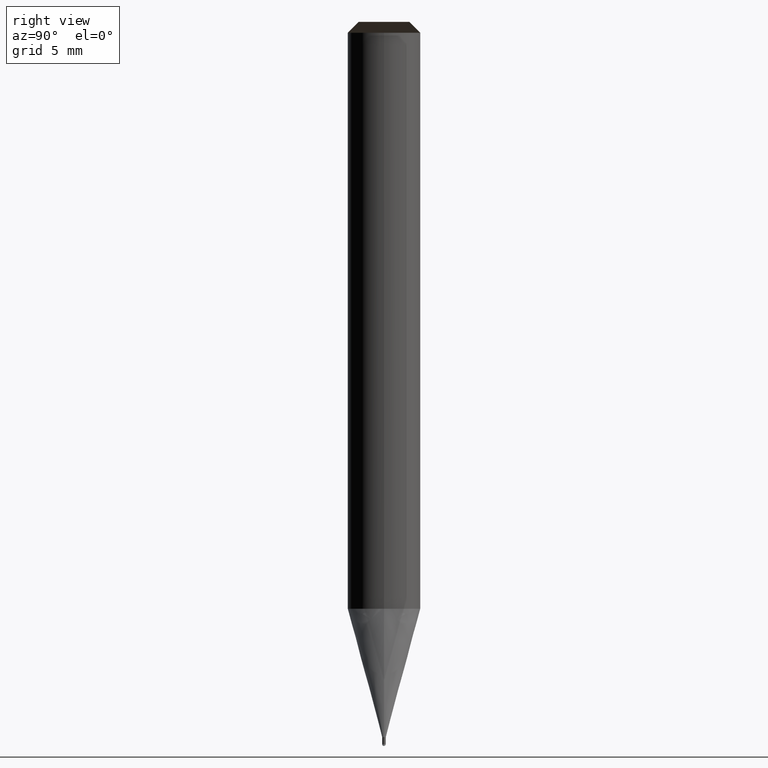
[diagram: clean part render]
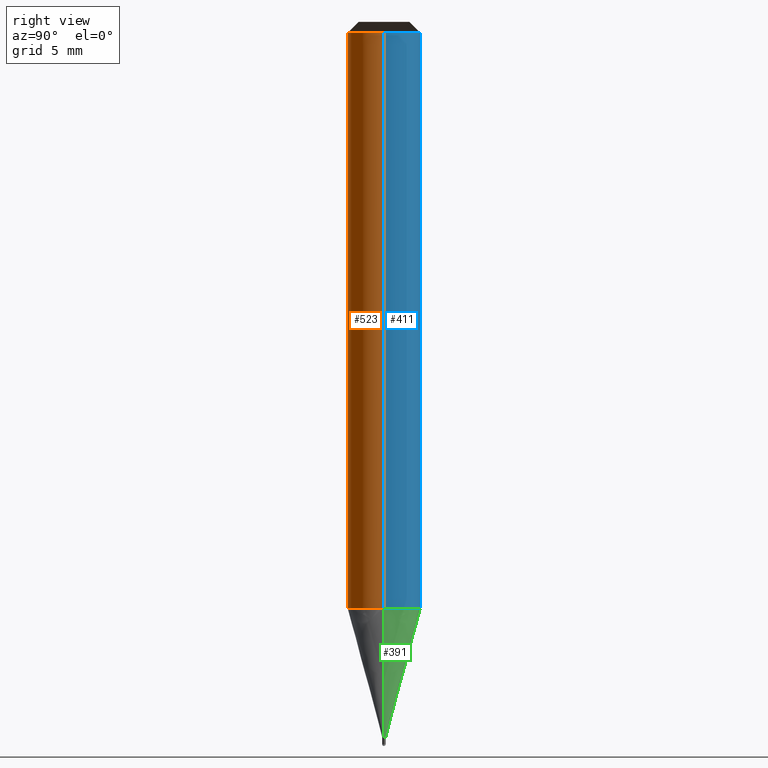
[diagram: same view with three faces highlighted in distinct colors, each labeled with its STEP entity id]
A machine part, right view with three faces highlighted in distinct colors.
Their STEP definitions:

[orange] entity #523 — the highlighted face is a freeform B-spline surface patch.
#195=CARTESIAN_POINT('',(2.0,0.0,-0.0));
#199=CARTESIAN_POINT('',(-2.0,0.0,-0.0));
#200=CARTESIAN_POINT('',(2.0,0.0,31.81));
#204=CARTESIAN_POINT('',(-2.0,0.0,31.81));
#214=CARTESIAN_POINT('',(-2.0,-2.0,-0.0));
#215=CARTESIAN_POINT('',(0.0,-2.0,-0.0));
#216=CARTESIAN_POINT('',(2.0,-2.0,-0.0));
#217=CARTESIAN_POINT('',(-2.0,-2.0,31.81));
#218=CARTESIAN_POINT('',(0.0,-2.0,31.81));
#219=CARTESIAN_POINT('',(2.0,-2.0,31.81));
#504=(
BOUNDED_SURFACE()
B_SPLINE_SURFACE(1,2,(
(#199,#214,#215,#216,#195),
(#204,#217,#218,#219,#200)
), .UNSPECIFIED.,.F.,.F.,.F.)
B_SPLINE_SURFACE_WITH_KNOTS((2,2),(3,2,3),(
0.0,1.0),(
0.0,0.5,1.0), .UNSPECIFIED.)
GEOMETRIC_REPRESENTATION_ITEM()
RATIONAL_B_SPLINE_SURFACE(((1.0,0.707106781187,1.0,0.707106781187,1.0),
(1.0,0.707106781187,1.0,0.707106781187,1.0)
))
REPRESENTATION_ITEM('')
SURFACE()
);
#505=(
BOUNDED_CURVE()
B_SPLINE_CURVE(1,(#204,#199),.UNSPECIFIED.,.F.,.F.)
B_SPLINE_CURVE_WITH_KNOTS((2,2),
(0.0,1.0),.UNSPECIFIED.)
CURVE()
GEOMETRIC_REPRESENTATION_ITEM()
RATIONAL_B_SPLINE_CURVE((1.0,1.0))
REPRESENTATION_ITEM('')
);
#506=(
BOUNDED_CURVE()
B_SPLINE_CURVE(2,(#199,#214,#215,#216,#195),.UNSPECIFIED.,.F.,.F.)
B_SPLINE_CURVE_WITH_KNOTS((3,2,3),
(0.0,0.5,1.0),.UNSPECIFIED.)
CURVE()
GEOMETRIC_REPRESENTATION_ITEM()
RATIONAL_B_SPLINE_CURVE((1.0,0.707106781187,1.0,0.707106781187,1.0))
REPRESENTATION_ITEM('')
);
#507=(
BOUNDED_CURVE()
B_SPLINE_CURVE(1,(#195,#200),.UNSPECIFIED.,.F.,.F.)
B_SPLINE_CURVE_WITH_KNOTS((2,2),
(0.0,1.0),.UNSPECIFIED.)
CURVE()
GEOMETRIC_REPRESENTATION_ITEM()
RATIONAL_B_SPLINE_CURVE((1.0,1.0))
REPRESENTATION_ITEM('')
);
#508=(
BOUNDED_CURVE()
B_SPLINE_CURVE(2,(#200,#219,#218,#217,#204),.UNSPECIFIED.,.F.,.F.)
B_SPLINE_CURVE_WITH_KNOTS((3,2,3),
(0.0,0.5,1.0),.UNSPECIFIED.)
CURVE()
GEOMETRIC_REPRESENTATION_ITEM()
RATIONAL_B_SPLINE_CURVE((1.0,0.707106781187,1.0,0.707106781187,1.0))
REPRESENTATION_ITEM('')
);
#509=VERTEX_POINT('',#195);
#510=VERTEX_POINT('',#199);
#511=VERTEX_POINT('',#200);
#512=VERTEX_POINT('',#204);
#513=EDGE_CURVE('',#512,#510,#505,.T.);
#514=EDGE_CURVE('',#510,#509,#506,.T.);
#515=EDGE_CURVE('',#509,#511,#507,.T.);
#516=EDGE_CURVE('',#511,#512,#508,.T.);
#517=ORIENTED_EDGE('',*,*,#513,.T.);
#518=ORIENTED_EDGE('',*,*,#514,.T.);
#519=ORIENTED_EDGE('',*,*,#515,.T.);
#520=ORIENTED_EDGE('',*,*,#516,.T.);
#521=EDGE_LOOP('',(#517,#518,#519,#520));
#522=FACE_OUTER_BOUND('',#521,.T.);
#523=ADVANCED_FACE('',(#522),#504,.T.);

[blue] entity #411 — the highlighted face is a freeform B-spline surface patch.
#195=CARTESIAN_POINT('',(2.0,0.0,-0.0));
#196=CARTESIAN_POINT('',(2.0,2.0,-0.0));
#197=CARTESIAN_POINT('',(0.0,2.0,-0.0));
#198=CARTESIAN_POINT('',(-2.0,2.0,-0.0));
#199=CARTESIAN_POINT('',(-2.0,0.0,-0.0));
#200=CARTESIAN_POINT('',(2.0,0.0,31.81));
#201=CARTESIAN_POINT('',(2.0,2.0,31.81));
#202=CARTESIAN_POINT('',(0.0,2.0,31.81));
#203=CARTESIAN_POINT('',(-2.0,2.0,31.81));
#204=CARTESIAN_POINT('',(-2.0,0.0,31.81));
#392=(
BOUNDED_SURFACE()
B_SPLINE_SURFACE(1,2,(
(#195,#196,#197,#198,#199),
(#200,#201,#202,#203,#204)
), .UNSPECIFIED.,.F.,.F.,.F.)
B_SPLINE_SURFACE_WITH_KNOTS((2,2),(3,2,3),(
0.0,1.0),(
0.0,0.5,1.0), .UNSPECIFIED.)
GEOMETRIC_REPRESENTATION_ITEM()
RATIONAL_B_SPLINE_SURFACE(((1.0,0.707106781187,1.0,0.707106781187,1.0),
(1.0,0.707106781187,1.0,0.707106781187,1.0)
))
REPRESENTATION_ITEM('')
SURFACE()
);
#393=(
BOUNDED_CURVE()
B_SPLINE_CURVE(2,(#200,#201,#202,#203,#204),.UNSPECIFIED.,.F.,.F.)
B_SPLINE_CURVE_WITH_KNOTS((3,2,3),
(0.0,0.5,1.0),.UNSPECIFIED.)
CURVE()
GEOMETRIC_REPRESENTATION_ITEM()
RATIONAL_B_SPLINE_CURVE((1.0,0.707106781187,1.0,0.707106781187,1.0))
REPRESENTATION_ITEM('')
);
#394=(
BOUNDED_CURVE()
B_SPLINE_CURVE(1,(#204,#199),.UNSPECIFIED.,.F.,.F.)
B_SPLINE_CURVE_WITH_KNOTS((2,2),
(0.0,1.0),.UNSPECIFIED.)
CURVE()
GEOMETRIC_REPRESENTATION_ITEM()
RATIONAL_B_SPLINE_CURVE((1.0,1.0))
REPRESENTATION_ITEM('')
);
#395=(
BOUNDED_CURVE()
B_SPLINE_CURVE(2,(#199,#198,#197,#196,#195),.UNSPECIFIED.,.F.,.F.)
B_SPLINE_CURVE_WITH_KNOTS((3,2,3),
(0.0,0.5,1.0),.UNSPECIFIED.)
CURVE()
GEOMETRIC_REPRESENTATION_ITEM()
RATIONAL_B_SPLINE_CURVE((1.0,0.707106781187,1.0,0.707106781187,1.0))
REPRESENTATION_ITEM('')
);
#396=(
BOUNDED_CURVE()
B_SPLINE_CURVE(1,(#195,#200),.UNSPECIFIED.,.F.,.F.)
B_SPLINE_CURVE_WITH_KNOTS((2,2),
(0.0,1.0),.UNSPECIFIED.)
CURVE()
GEOMETRIC_REPRESENTATION_ITEM()
RATIONAL_B_SPLINE_CURVE((1.0,1.0))
REPRESENTATION_ITEM('')
);
#397=VERTEX_POINT('',#195);
#398=VERTEX_POINT('',#199);
#399=VERTEX_POINT('',#200);
#400=VERTEX_POINT('',#204);
#401=EDGE_CURVE('',#399,#400,#393,.T.);
#402=EDGE_CURVE('',#400,#398,#394,.T.);
#403=EDGE_CURVE('',#398,#397,#395,.T.);
#404=EDGE_CURVE('',#397,#399,#396,.T.);
#405=ORIENTED_EDGE('',*,*,#401,.T.);
#406=ORIENTED_EDGE('',*,*,#402,.T.);
#407=ORIENTED_EDGE('',*,*,#403,.T.);
#408=ORIENTED_EDGE('',*,*,#404,.T.);
#409=EDGE_LOOP('',(#405,#406,#407,#408));
#410=FACE_OUTER_BOUND('',#409,.T.);
#411=ADVANCED_FACE('',(#410),#392,.T.);

[green] entity #391 — the highlighted face is a freeform B-spline surface patch.
#190=CARTESIAN_POINT('',(0.1,0.0,-7.090896534381));
#191=CARTESIAN_POINT('',(0.1,0.1,-7.090896534381));
#192=CARTESIAN_POINT('',(0.0,0.1,-7.090896534381));
#193=CARTESIAN_POINT('',(-0.1,0.1,-7.090896534381));
#194=CARTESIAN_POINT('',(-0.1,0.0,-7.090896534381));
#195=CARTESIAN_POINT('',(2.0,0.0,-0.0));
#196=CARTESIAN_POINT('',(2.0,2.0,-0.0));
#197=CARTESIAN_POINT('',(0.0,2.0,-0.0));
#198=CARTESIAN_POINT('',(-2.0,2.0,-0.0));
#199=CARTESIAN_POINT('',(-2.0,0.0,-0.0));
#372=(
BOUNDED_SURFACE()
B_SPLINE_SURFACE(1,2,(
(#190,#191,#192,#193,#194),
(#195,#196,#197,#198,#199)
), .UNSPECIFIED.,.F.,.F.,.F.)
B_SPLINE_SURFACE_WITH_KNOTS((2,2),(3,2,3),(
0.0,1.0),(
0.0,0.5,1.0), .UNSPECIFIED.)
GEOMETRIC_REPRESENTATION_ITEM()
RATIONAL_B_SPLINE_SURFACE(((1.0,0.707106781187,1.0,0.707106781187,1.0),
(1.0,0.707106781187,1.0,0.707106781187,1.0)
))
REPRESENTATION_ITEM('')
SURFACE()
);
#373=(
BOUNDED_CURVE()
B_SPLINE_CURVE(2,(#195,#196,#197,#198,#199),.UNSPECIFIED.,.F.,.F.)
B_SPLINE_CURVE_WITH_KNOTS((3,2,3),
(0.0,0.5,1.0),.UNSPECIFIED.)
CURVE()
GEOMETRIC_REPRESENTATION_ITEM()
RATIONAL_B_SPLINE_CURVE((1.0,0.707106781187,1.0,0.707106781187,1.0))
REPRESENTATION_ITEM('')
);
#374=(
BOUNDED_CURVE()
B_SPLINE_CURVE(1,(#199,#194),.UNSPECIFIED.,.F.,.F.)
B_SPLINE_CURVE_WITH_KNOTS((2,2),
(0.0,1.0),.UNSPECIFIED.)
CURVE()
GEOMETRIC_REPRESENTATION_ITEM()
RATIONAL_B_SPLINE_CURVE((1.0,1.0))
REPRESENTATION_ITEM('')
);
#375=(
BOUNDED_CURVE()
B_SPLINE_CURVE(2,(#194,#193,#192,#191,#190),.UNSPECIFIED.,.F.,.F.)
B_SPLINE_CURVE_WITH_KNOTS((3,2,3),
(0.0,0.5,1.0),.UNSPECIFIED.)
CURVE()
GEOMETRIC_REPRESENTATION_ITEM()
RATIONAL_B_SPLINE_CURVE((1.0,0.707106781187,1.0,0.707106781187,1.0))
REPRESENTATION_ITEM('')
);
#376=(
BOUNDED_CURVE()
B_SPLINE_CURVE(1,(#190,#195),.UNSPECIFIED.,.F.,.F.)
B_SPLINE_CURVE_WITH_KNOTS((2,2),
(0.0,1.0),.UNSPECIFIED.)
CURVE()
GEOMETRIC_REPRESENTATION_ITEM()
RATIONAL_B_SPLINE_CURVE((1.0,1.0))
REPRESENTATION_ITEM('')
);
#377=VERTEX_POINT('',#190);
#378=VERTEX_POINT('',#194);
#379=VERTEX_POINT('',#195);
#380=VERTEX_POINT('',#199);
#381=EDGE_CURVE('',#379,#380,#373,.T.);
#382=EDGE_CURVE('',#380,#378,#374,.T.);
#383=EDGE_CURVE('',#378,#377,#375,.T.);
#384=EDGE_CURVE('',#377,#379,#376,.T.);
#385=ORIENTED_EDGE('',*,*,#381,.T.);
#386=ORIENTED_EDGE('',*,*,#382,.T.);
#387=ORIENTED_EDGE('',*,*,#383,.T.);
#388=ORIENTED_EDGE('',*,*,#384,.T.);
#389=EDGE_LOOP('',(#385,#386,#387,#388));
#390=FACE_OUTER_BOUND('',#389,.T.);
#391=ADVANCED_FACE('',(#390),#372,.T.);